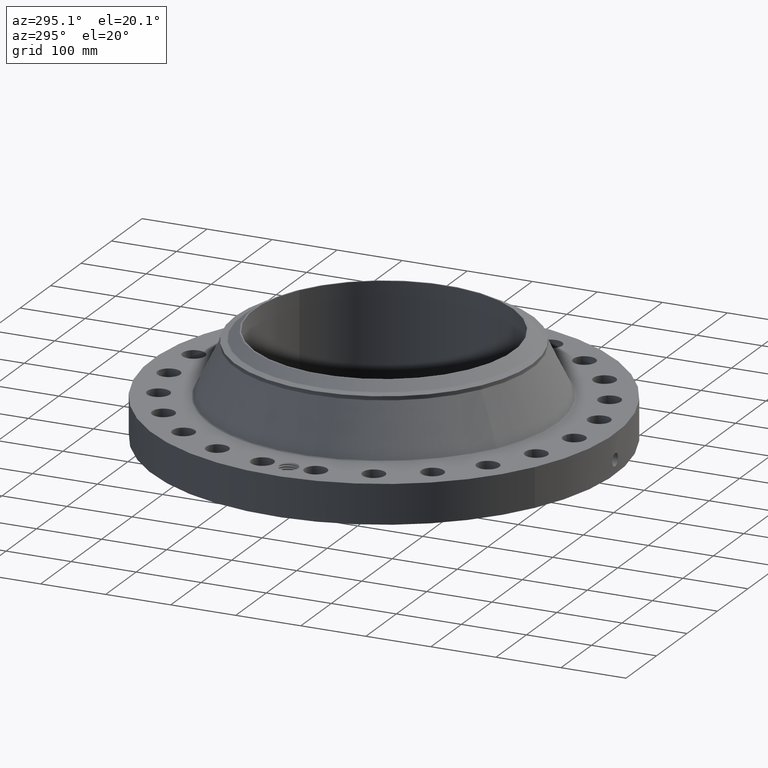
[diagram: clean part render]
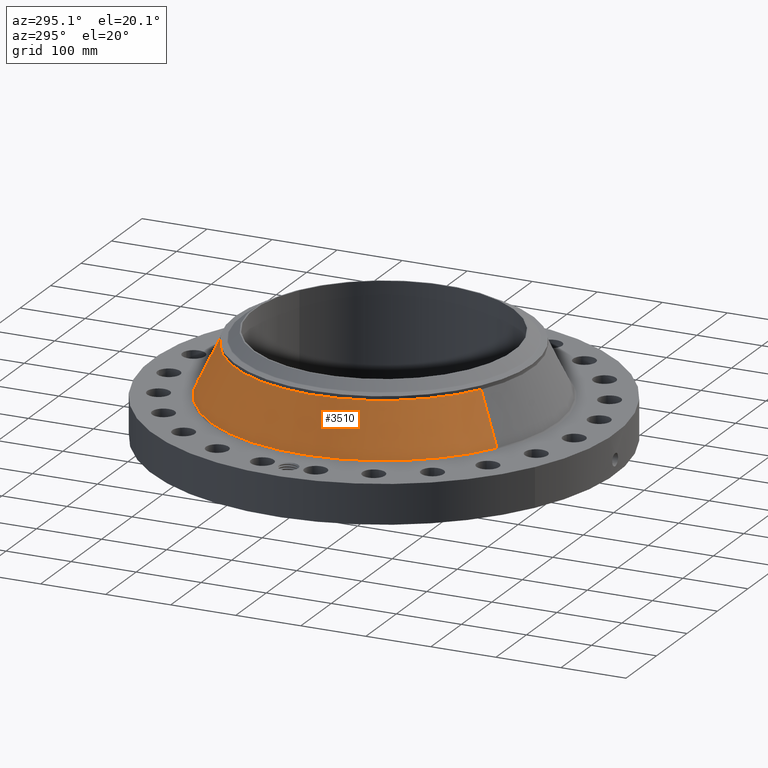
[diagram: same view with one face highlighted and labeled with its STEP entity id]
A machine part, auxiliary view. The second image highlights one B-rep face of the part: STEP entity #3510.
In plain terms, the highlighted conical surface has half-angle 26.201 deg.
Its self-contained STEP definition (entity closure, byte-faithful):
#2860=AXIS2_PLACEMENT_3D('Circle Axis2P3D',#2858,#2859,$) ;
#3471=AXIS2_PLACEMENT_3D('Cone Axis2P3D',#3468,#3469,#3470) ;
#3501=AXIS2_PLACEMENT_3D('Circle Axis2P3D',#3499,#3500,$) ;
#2836=CARTESIAN_POINT('Vertex',(5.01815762587,9.18567591977,2.50701756045)) ;
#2843=CARTESIAN_POINT('Vertex',(-5.01815762587,-9.18567591977,2.50701756045)) ;
#2858=CARTESIAN_POINT('Axis2P3D Location',(0.,0.,2.50701756045)) ;
#3468=CARTESIAN_POINT('Axis2P3D Location',(0.,0.,5.48827836615)) ;
#3473=CARTESIAN_POINT('Line Origine',(4.66649373666,8.54195948841,3.9976479633)) ;
#3477=CARTESIAN_POINT('Vertex',(4.31482984746,7.89824305704,5.48827836615)) ;
#3484=CARTESIAN_POINT('Vertex',(-4.31482984746,-7.89824305704,5.48827836615)) ;
#3487=CARTESIAN_POINT('Line Origine',(-4.66649373666,-8.54195948841,3.9976479633)) ;
#3499=CARTESIAN_POINT('Axis2P3D Location',(0.,0.,5.48827836615)) ;
#2859=DIRECTION('Axis2P3D Direction',(0.,0.,-0.0393700787402)) ;
#3469=DIRECTION('Axis2P3D Direction',(0.,0.,-0.0393700787402)) ;
#3470=DIRECTION('Axis2P3D XDirection',(-0.0188750212049,-0.0345504945626,0.)) ;
#3474=DIRECTION('Vector Direction',(0.0083337055844,0.0152547457486,-0.0353248522061)) ;
#3488=DIRECTION('Vector Direction',(-0.0083337055844,-0.0152547457486,-0.0353248522061)) ;
#3500=DIRECTION('Axis2P3D Direction',(0.,0.,-0.0393700787402)) ;
#3475=VECTOR('Line Direction',#3474,0.0393700787402) ;
#3489=VECTOR('Line Direction',#3488,0.0393700787402) ;
#3505=ORIENTED_EDGE('',*,*,#2862,.F.) ;
#3506=ORIENTED_EDGE('',*,*,#3491,.T.) ;
#3507=ORIENTED_EDGE('',*,*,#3503,.T.) ;
#3508=ORIENTED_EDGE('',*,*,#3479,.F.) ;
#3510=ADVANCED_FACE('PartBody',(#3509),#3472,.T.) ;
#2861=CIRCLE('generated circle',#2860,10.467021929) ;
#3502=CIRCLE('generated circle',#3501,9.00000000004) ;
#3472=CONICAL_SURFACE('Cone',#3471,9.00000000004,0.457292398626) ;
#2862=EDGE_CURVE('',#2844,#2837,#2861,.T.) ;
#3479=EDGE_CURVE('',#2837,#3478,#3476,.F.) ;
#3491=EDGE_CURVE('',#2844,#3485,#3490,.F.) ;
#3503=EDGE_CURVE('',#3485,#3478,#3502,.T.) ;
#3504=EDGE_LOOP('',(#3505,#3506,#3507,#3508)) ;
#3509=FACE_OUTER_BOUND('',#3504,.T.) ;
#3476=LINE('Line',#3473,#3475) ;
#3490=LINE('Line',#3487,#3489) ;
#2837=VERTEX_POINT('',#2836) ;
#2844=VERTEX_POINT('',#2843) ;
#3478=VERTEX_POINT('',#3477) ;
#3485=VERTEX_POINT('',#3484) ;